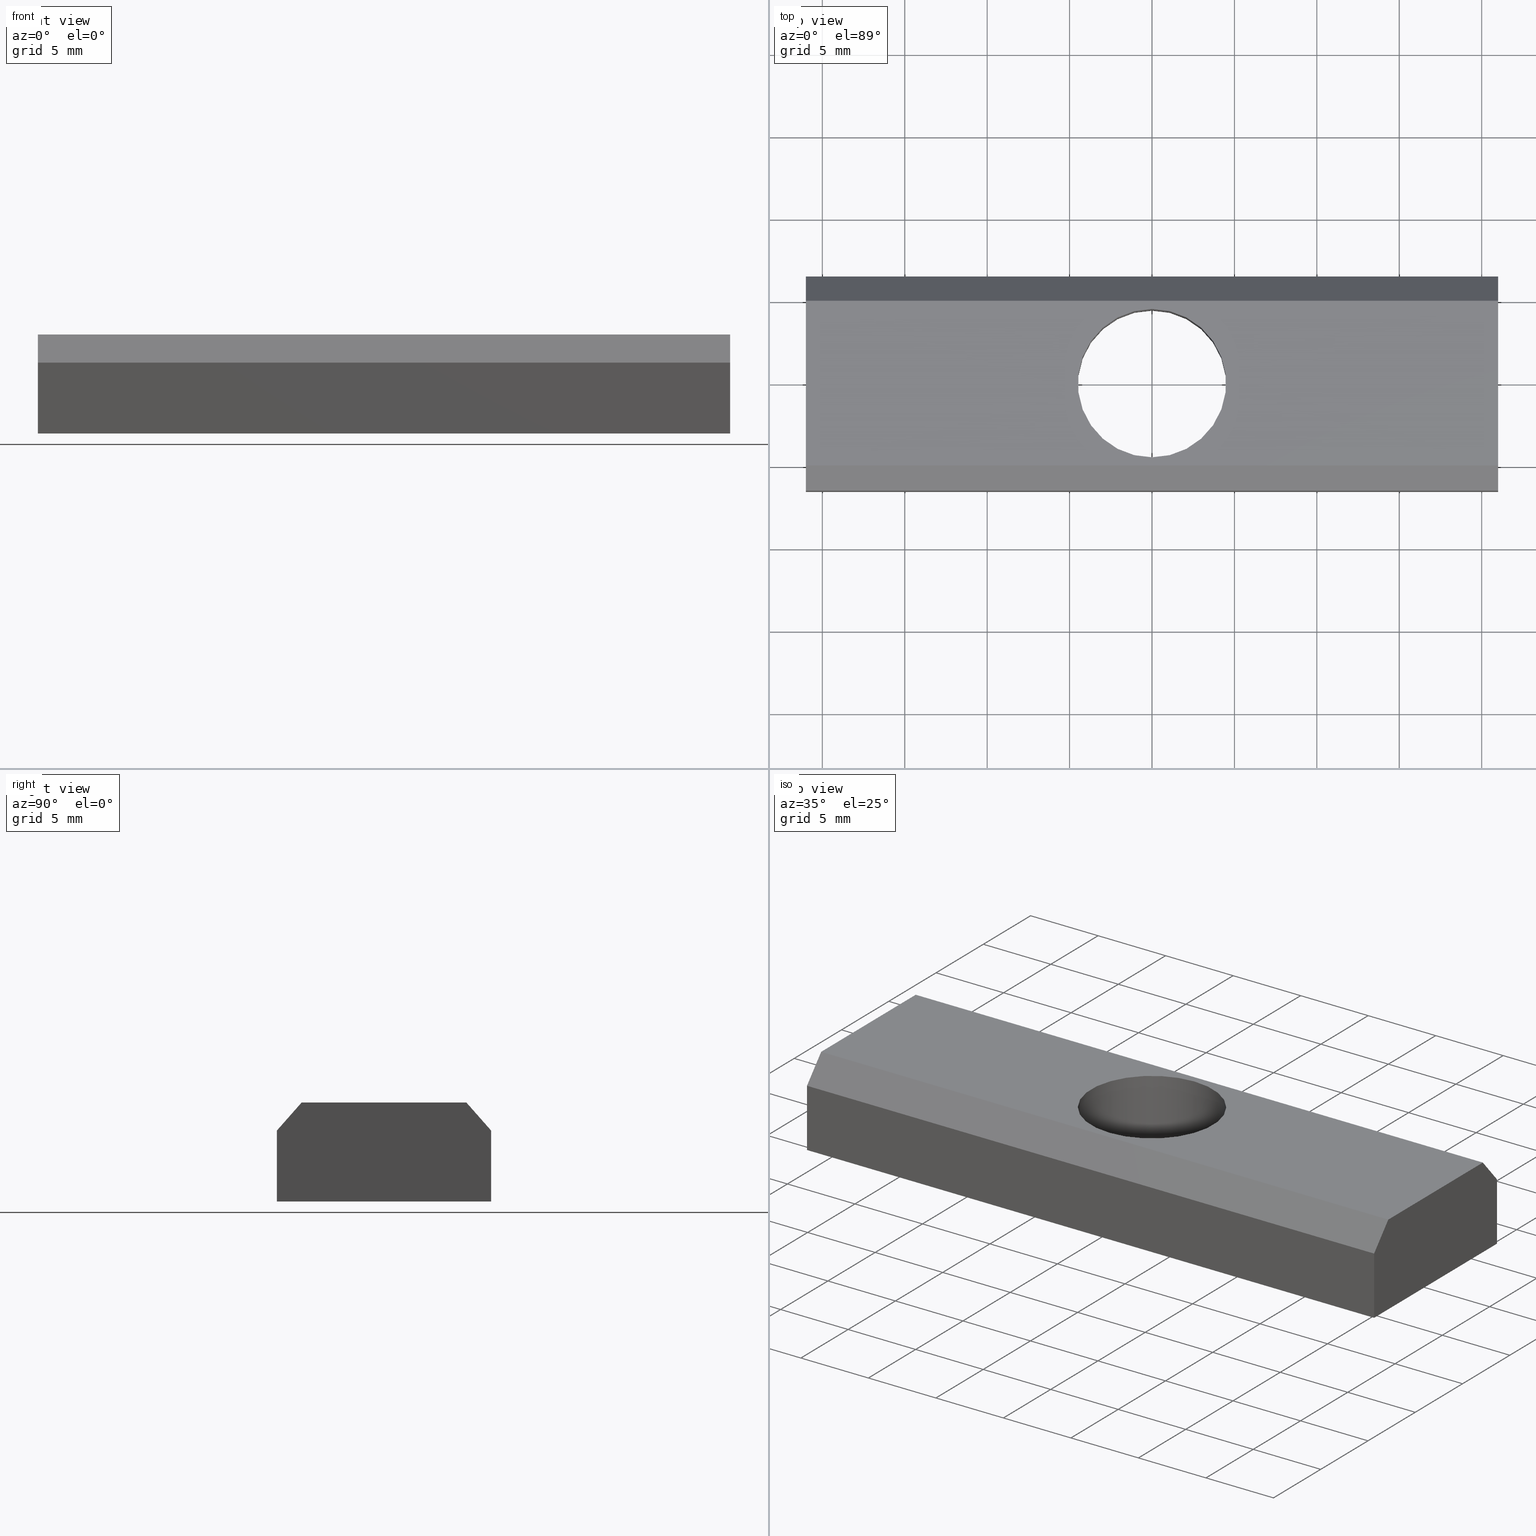
[diagram: canonical four-view strip — front | top / right | iso, engineering-drawing reading convention]
A machine part, canonical four-view strip (front | top / right | iso — engineering-drawing reading convention). The complete STEP part file that produces these views, byte-faithful:
ISO-10303-21;
HEADER;
/****************************************************************
 * Generated by software with PDE/Lib inside                    *
 * PDElib Version v4.4, created Mon 02/23/2004                  *
 * International Technegroup Inc. (www.iti-oh.com)              *
 ****************************************************************/
FILE_DESCRIPTION(('STEP AP203'),'2;1');
FILE_NAME('26.061.00.stp','2011-03-21T16:15:34',(''),(''),'2009.3.110','THINKDESIGN','');
FILE_SCHEMA(('CONFIG_CONTROL_DESIGN'));
ENDSEC;
DATA;
#2=CARTESIAN_POINT('',(-21.000000000084128,-6.499999999974079,4.299999999982900));
#3=DIRECTION('',(0.0,-1.0,0.0));
#4=DIRECTION('',(0.0,0.0,-1.0));
#5=AXIS2_PLACEMENT_3D('',#2,#3,#4);
#6=PLANE('',#5);
#7=CARTESIAN_POINT('',(-21.000000000084128,-6.499999999974079,4.299999999982900));
#8=VERTEX_POINT('',#7);
#9=CARTESIAN_POINT('',(-21.000000000084128,-6.499999999974079,-1.776357E-015));
#10=VERTEX_POINT('',#9);
#11=CARTESIAN_POINT('',(-21.000000000084128,-6.499999999974079,4.299999999982809));
#12=DIRECTION('',(0.0,0.0,-1.0));
#13=VECTOR('',#12,4.299999999982811);
#14=LINE('',#11,#13);
#15=EDGE_CURVE('',#8,#10,#14,.T.);
#16=ORIENTED_EDGE('',*,*,#15,.T.);
#17=CARTESIAN_POINT('',(20.999999999915872,-6.499999999974079,-1.776357E-015));
#18=VERTEX_POINT('',#17);
#19=CARTESIAN_POINT('',(-21.000000000084128,-6.499999999974079,-1.776357E-015));
#20=DIRECTION('',(1.0,0.0,0.0));
#21=VECTOR('',#20,42.0);
#22=LINE('',#19,#21);
#23=EDGE_CURVE('',#10,#18,#22,.T.);
#24=ORIENTED_EDGE('',*,*,#23,.T.);
#25=CARTESIAN_POINT('',(20.999999999915872,-6.499999999974079,4.299999999982900));
#26=VERTEX_POINT('',#25);
#27=CARTESIAN_POINT('',(20.999999999915872,-6.499999999974079,4.299999999982809));
#28=DIRECTION('',(0.0,0.0,-1.0));
#29=VECTOR('',#28,4.299999999982811);
#30=LINE('',#27,#29);
#31=EDGE_CURVE('',#26,#18,#30,.T.);
#32=ORIENTED_EDGE('',*,*,#31,.F.);
#33=CARTESIAN_POINT('',(-21.000000000084128,-6.499999999974079,4.299999999982900));
#34=DIRECTION('',(1.0,0.0,0.0));
#35=VECTOR('',#34,42.0);
#36=LINE('',#33,#35);
#37=EDGE_CURVE('',#8,#26,#36,.T.);
#38=ORIENTED_EDGE('',*,*,#37,.F.);
#39=EDGE_LOOP('',(#16,#24,#32,#38));
#40=FACE_OUTER_BOUND('',#39,.T.);
#41=ADVANCED_FACE('',(#40),#6,.T.);
#42=CARTESIAN_POINT('',(-21.000000000084128,-6.499999999974079,-1.776357E-015));
#43=DIRECTION('',(0.0,0.0,-1.0));
#44=DIRECTION('',(0.0,1.0,0.0));
#45=AXIS2_PLACEMENT_3D('',#42,#43,#44);
#46=PLANE('',#45);
#47=CARTESIAN_POINT('',(-21.000000000084128,6.499999999974079,-1.776357E-015));
#48=VERTEX_POINT('',#47);
#49=CARTESIAN_POINT('',(-21.000000000084128,-6.499999999974079,-1.776357E-015));
#50=DIRECTION('',(0.0,1.0,0.0));
#51=VECTOR('',#50,12.999999999948013);
#52=LINE('',#49,#51);
#53=EDGE_CURVE('',#10,#48,#52,.T.);
#54=ORIENTED_EDGE('',*,*,#53,.T.);
#55=CARTESIAN_POINT('',(20.999999999915872,6.499999999974079,-1.776357E-015));
#56=VERTEX_POINT('',#55);
#57=CARTESIAN_POINT('',(-21.000000000084128,6.499999999974079,-1.776357E-015));
#58=DIRECTION('',(1.0,0.0,0.0));
#59=VECTOR('',#58,42.0);
#60=LINE('',#57,#59);
#61=EDGE_CURVE('',#48,#56,#60,.T.);
#62=ORIENTED_EDGE('',*,*,#61,.T.);
#63=CARTESIAN_POINT('',(20.999999999915872,-6.499999999974079,-1.776357E-015));
#64=DIRECTION('',(0.0,1.0,0.0));
#65=VECTOR('',#64,12.999999999948013);
#66=LINE('',#63,#65);
#67=EDGE_CURVE('',#18,#56,#66,.T.);
#68=ORIENTED_EDGE('',*,*,#67,.F.);
#69=ORIENTED_EDGE('',*,*,#23,.F.);
#70=EDGE_LOOP('',(#54,#62,#68,#69));
#71=FACE_OUTER_BOUND('',#70,.T.);
#72=CARTESIAN_POINT('',(0.0,-4.500000000000000,-8.881784E-016));
#73=VERTEX_POINT('',#72);
#74=CARTESIAN_POINT('',(0.0,4.500000000000000,0.0));
#75=VERTEX_POINT('',#74);
#76=CARTESIAN_POINT('',(0.0,0.0,0.0));
#77=DIRECTION('',(-6.123234E-017,0.0,1.0));
#78=DIRECTION('',(0.0,-1.0,0.0));
#79=AXIS2_PLACEMENT_3D('',#76,#77,#78);
#80=CIRCLE('',#79,4.500000000000000);
#81=EDGE_CURVE('',#73,#75,#80,.T.);
#82=ORIENTED_EDGE('',*,*,#81,.T.);
#83=CARTESIAN_POINT('',(0.0,0.0,0.0));
#84=DIRECTION('',(-6.123234E-017,0.0,1.0));
#85=DIRECTION('',(0.0,-1.0,0.0));
#86=AXIS2_PLACEMENT_3D('',#83,#84,#85);
#87=CIRCLE('',#86,4.500000000000000);
#88=EDGE_CURVE('',#75,#73,#87,.T.);
#89=ORIENTED_EDGE('',*,*,#88,.T.);
#90=EDGE_LOOP('',(#82,#89));
#91=FACE_BOUND('',#90,.T.);
#92=ADVANCED_FACE('',(#71,#91),#46,.T.);
#93=CARTESIAN_POINT('',(-21.000000000084128,6.499999999974079,-1.776357E-015));
#94=DIRECTION('',(0.0,1.0,0.0));
#95=DIRECTION('',(0.0,0.0,1.0));
#96=AXIS2_PLACEMENT_3D('',#93,#94,#95);
#97=PLANE('',#96);
#98=CARTESIAN_POINT('',(-21.000000000084128,6.499999999974079,4.299999999982445));
#99=VERTEX_POINT('',#98);
#100=CARTESIAN_POINT('',(-21.000000000084128,6.499999999974079,-1.776357E-015));
#101=DIRECTION('',(0.0,0.0,1.0));
#102=VECTOR('',#101,4.299999999982811);
#103=LINE('',#100,#102);
#104=EDGE_CURVE('',#48,#99,#103,.T.);
#105=ORIENTED_EDGE('',*,*,#104,.T.);
#106=CARTESIAN_POINT('',(20.999999999915872,6.499999999974079,4.299999999982445));
#107=VERTEX_POINT('',#106);
#108=CARTESIAN_POINT('',(-21.000000000084128,6.499999999974079,4.299999999982445));
#109=DIRECTION('',(1.0,0.0,0.0));
#110=VECTOR('',#109,42.0);
#111=LINE('',#108,#110);
#112=EDGE_CURVE('',#99,#107,#111,.T.);
#113=ORIENTED_EDGE('',*,*,#112,.T.);
#114=CARTESIAN_POINT('',(20.999999999915872,6.499999999974079,-1.776357E-015));
#115=DIRECTION('',(0.0,0.0,1.0));
#116=VECTOR('',#115,4.299999999982811);
#117=LINE('',#114,#116);
#118=EDGE_CURVE('',#56,#107,#117,.T.);
#119=ORIENTED_EDGE('',*,*,#118,.F.);
#120=ORIENTED_EDGE('',*,*,#61,.F.);
#121=EDGE_LOOP('',(#105,#113,#119,#120));
#122=FACE_OUTER_BOUND('',#121,.T.);
#123=ADVANCED_FACE('',(#122),#97,.T.);
#124=CARTESIAN_POINT('',(-21.000000000084128,6.499999999974079,4.299999999982445));
#125=DIRECTION('',(-4.051264E-017,0.749837855365034,0.661621637086913));
#126=DIRECTION('',(-4.591433E-017,-0.661621637086913,0.749837855365034));
#127=AXIS2_PLACEMENT_3D('',#124,#125,#126);
#128=PLANE('',#127);
#129=CARTESIAN_POINT('',(-21.000000000084128,4.999999999979991,5.999999999975897));
#130=VERTEX_POINT('',#129);
#131=CARTESIAN_POINT('',(-21.000000000084128,6.499999999974079,4.299999999982445));
#132=DIRECTION('',(0.0,-0.661621637086846,0.749837855365093));
#133=VECTOR('',#132,2.267156809741826);
#134=LINE('',#131,#133);
#135=EDGE_CURVE('',#99,#130,#134,.T.);
#136=ORIENTED_EDGE('',*,*,#135,.T.);
#137=CARTESIAN_POINT('',(20.999999999915872,4.999999999979991,5.999999999975897));
#138=VERTEX_POINT('',#137);
#139=CARTESIAN_POINT('',(-21.000000000084128,4.999999999979991,5.999999999975897));
#140=DIRECTION('',(1.0,0.0,0.0));
#141=VECTOR('',#140,42.0);
#142=LINE('',#139,#141);
#143=EDGE_CURVE('',#130,#138,#142,.T.);
#144=ORIENTED_EDGE('',*,*,#143,.T.);
#145=CARTESIAN_POINT('',(20.999999999915872,6.499999999974079,4.299999999982445));
#146=DIRECTION('',(0.0,-0.661621637086846,0.749837855365093));
#147=VECTOR('',#146,2.267156809741826);
#148=LINE('',#145,#147);
#149=EDGE_CURVE('',#107,#138,#148,.T.);
#150=ORIENTED_EDGE('',*,*,#149,.F.);
#151=ORIENTED_EDGE('',*,*,#112,.F.);
#152=EDGE_LOOP('',(#136,#144,#150,#151));
#153=FACE_OUTER_BOUND('',#152,.T.);
#154=ADVANCED_FACE('',(#153),#128,.T.);
#155=CARTESIAN_POINT('',(-21.000000000084128,4.999999999979991,5.999999999975897));
#156=DIRECTION('',(0.0,0.0,1.0));
#157=DIRECTION('',(0.0,-1.0,0.0));
#158=AXIS2_PLACEMENT_3D('',#155,#156,#157);
#159=PLANE('',#158);
#160=CARTESIAN_POINT('',(-21.000000000084128,-4.999999999979991,5.999999999975442));
#161=VERTEX_POINT('',#160);
#162=CARTESIAN_POINT('',(-21.000000000084128,4.999999999980011,5.999999999975897));
#163=DIRECTION('',(0.0,-1.0,0.0));
#164=VECTOR('',#163,9.999999999960002);
#165=LINE('',#162,#164);
#166=EDGE_CURVE('',#130,#161,#165,.T.);
#167=ORIENTED_EDGE('',*,*,#166,.T.);
#168=CARTESIAN_POINT('',(20.999999999915872,-4.999999999979991,5.999999999975442));
#169=VERTEX_POINT('',#168);
#170=CARTESIAN_POINT('',(-21.000000000084128,-4.999999999979991,5.999999999975442));
#171=DIRECTION('',(1.0,0.0,0.0));
#172=VECTOR('',#171,42.0);
#173=LINE('',#170,#172);
#174=EDGE_CURVE('',#161,#169,#173,.T.);
#175=ORIENTED_EDGE('',*,*,#174,.T.);
#176=CARTESIAN_POINT('',(20.999999999915872,4.999999999980011,5.999999999975897));
#177=DIRECTION('',(0.0,-1.0,0.0));
#178=VECTOR('',#177,9.999999999960002);
#179=LINE('',#176,#178);
#180=EDGE_CURVE('',#138,#169,#179,.T.);
#181=ORIENTED_EDGE('',*,*,#180,.F.);
#182=ORIENTED_EDGE('',*,*,#143,.F.);
#183=EDGE_LOOP('',(#167,#175,#181,#182));
#184=FACE_OUTER_BOUND('',#183,.T.);
#185=CARTESIAN_POINT('',(0.0,4.500000000000000,5.999999999975898));
#186=VERTEX_POINT('',#185);
#187=CARTESIAN_POINT('',(0.0,-4.500000000000000,5.999999999975898));
#188=VERTEX_POINT('',#187);
#189=CARTESIAN_POINT('',(0.0,0.0,5.999999999975898));
#190=DIRECTION('',(-6.123234E-017,0.0,1.0));
#191=DIRECTION('',(0.0,-1.0,0.0));
#192=AXIS2_PLACEMENT_3D('',#189,#190,#191);
#193=CIRCLE('',#192,4.500000000000000);
#194=EDGE_CURVE('',#186,#188,#193,.T.);
#195=ORIENTED_EDGE('',*,*,#194,.F.);
#196=CARTESIAN_POINT('',(0.0,0.0,5.999999999975898));
#197=DIRECTION('',(-6.123234E-017,0.0,1.0));
#198=DIRECTION('',(0.0,-1.0,0.0));
#199=AXIS2_PLACEMENT_3D('',#196,#197,#198);
#200=CIRCLE('',#199,4.500000000000000);
#201=EDGE_CURVE('',#188,#186,#200,.T.);
#202=ORIENTED_EDGE('',*,*,#201,.F.);
#203=EDGE_LOOP('',(#195,#202));
#204=FACE_BOUND('',#203,.T.);
#205=ADVANCED_FACE('',(#184,#204),#159,.T.);
#206=CARTESIAN_POINT('',(-21.000000000084128,-4.999999999979991,5.999999999975442));
#207=DIRECTION('',(-4.051264E-017,-0.749837855365034,0.661621637086913));
#208=DIRECTION('',(4.591433E-017,-0.661621637086913,-0.749837855365034));
#209=AXIS2_PLACEMENT_3D('',#206,#207,#208);
#210=PLANE('',#209);
#211=CARTESIAN_POINT('',(-21.000000000084128,-4.999999999980083,5.999999999975621));
#212=DIRECTION('',(0.0,-0.661621637086851,-0.749837855365089));
#213=VECTOR('',#212,2.267156809741838);
#214=LINE('',#211,#213);
#215=EDGE_CURVE('',#161,#8,#214,.T.);
#216=ORIENTED_EDGE('',*,*,#215,.T.);
#217=ORIENTED_EDGE('',*,*,#37,.T.);
#218=CARTESIAN_POINT('',(20.999999999915872,-4.999999999980083,5.999999999975621));
#219=DIRECTION('',(0.0,-0.661621637086851,-0.749837855365089));
#220=VECTOR('',#219,2.267156809741838);
#221=LINE('',#218,#220);
#222=EDGE_CURVE('',#169,#26,#221,.T.);
#223=ORIENTED_EDGE('',*,*,#222,.F.);
#224=ORIENTED_EDGE('',*,*,#174,.F.);
#225=EDGE_LOOP('',(#216,#217,#223,#224));
#226=FACE_OUTER_BOUND('',#225,.T.);
#227=ADVANCED_FACE('',(#226),#210,.T.);
#228=CARTESIAN_POINT('',(-21.000000000084128,-7.800004735117909,6.600004735154014));
#229=DIRECTION('',(1.0,0.0,0.0));
#230=DIRECTION('',(0.0,0.0,-1.0));
#231=AXIS2_PLACEMENT_3D('',#228,#229,#230);
#232=PLANE('',#231);
#233=ORIENTED_EDGE('',*,*,#215,.F.);
#234=ORIENTED_EDGE('',*,*,#166,.F.);
#235=ORIENTED_EDGE('',*,*,#135,.F.);
#236=ORIENTED_EDGE('',*,*,#104,.F.);
#237=ORIENTED_EDGE('',*,*,#53,.F.);
#238=ORIENTED_EDGE('',*,*,#15,.F.);
#239=EDGE_LOOP('',(#233,#234,#235,#236,#237,#238));
#240=FACE_OUTER_BOUND('',#239,.T.);
#241=ADVANCED_FACE('',(#240),#232,.F.);
#242=CARTESIAN_POINT('',(20.999999999915872,-7.800004735117909,6.600004735154014));
#243=DIRECTION('',(1.0,0.0,0.0));
#244=DIRECTION('',(0.0,0.0,-1.0));
#245=AXIS2_PLACEMENT_3D('',#242,#243,#244);
#246=PLANE('',#245);
#247=ORIENTED_EDGE('',*,*,#31,.T.);
#248=ORIENTED_EDGE('',*,*,#67,.T.);
#249=ORIENTED_EDGE('',*,*,#118,.T.);
#250=ORIENTED_EDGE('',*,*,#149,.T.);
#251=ORIENTED_EDGE('',*,*,#180,.T.);
#252=ORIENTED_EDGE('',*,*,#222,.T.);
#253=EDGE_LOOP('',(#247,#248,#249,#250,#251,#252));
#254=FACE_OUTER_BOUND('',#253,.T.);
#255=ADVANCED_FACE('',(#254),#246,.T.);
#256=CARTESIAN_POINT('',(0.0,0.0,5.999999999975898));
#257=DIRECTION('',(-6.123234E-017,0.0,1.0));
#258=DIRECTION('',(0.0,-1.0,0.0));
#259=AXIS2_PLACEMENT_3D('',#256,#257,#258);
#260=CYLINDRICAL_SURFACE('',#259,4.500000000000000);
#261=CARTESIAN_POINT('',(0.0,-4.500000000000000,5.999999999975898));
#262=DIRECTION('',(0.0,0.0,-1.0));
#263=VECTOR('',#262,5.999999999975898);
#264=LINE('',#261,#263);
#265=EDGE_CURVE('',#188,#73,#264,.T.);
#266=ORIENTED_EDGE('',*,*,#265,.T.);
#267=ORIENTED_EDGE('',*,*,#88,.F.);
#268=ORIENTED_EDGE('',*,*,#81,.F.);
#269=ORIENTED_EDGE('',*,*,#265,.F.);
#270=ORIENTED_EDGE('',*,*,#201,.T.);
#271=ORIENTED_EDGE('',*,*,#194,.T.);
#272=EDGE_LOOP('',(#266,#267,#268,#269,#270,#271));
#273=FACE_OUTER_BOUND('',#272,.T.);
#274=ADVANCED_FACE('',(#273),#260,.F.);
#275=CLOSED_SHELL('',(#41,#92,#123,#154,#205,#227,#241,#255,#274));
#276=MANIFOLD_SOLID_BREP('',#275);
#277=CARTESIAN_POINT('',(0.0,0.0,5.999999999975898));
#283=(NAMED_UNIT(*)PLANE_ANGLE_UNIT()SI_UNIT($,.RADIAN.));
#284=DIMENSIONAL_EXPONENTS(0.0,0.0,0.0,0.0,0.0,0.0,0.0);
#285=PLANE_ANGLE_MEASURE_WITH_UNIT(PLANE_ANGLE_MEASURE(0.017453292500000),#283);
#289=(CONVERSION_BASED_UNIT('DEGREE',#285)NAMED_UNIT(#284)PLANE_ANGLE_UNIT());
#293=(NAMED_UNIT(*)SI_UNIT($,.STERADIAN.)SOLID_ANGLE_UNIT());
#297=(LENGTH_UNIT()NAMED_UNIT(*)SI_UNIT(.MILLI.,.METRE.));
#299=UNCERTAINTY_MEASURE_WITH_UNIT(LENGTH_MEASURE(0.001000000000000),#297,'DISTANCE_ACCURACY_VALUE','');
#301=(GEOMETRIC_REPRESENTATION_CONTEXT(3)GLOBAL_UNCERTAINTY_ASSIGNED_CONTEXT((#299))GLOBAL_UNIT_ASSIGNED_CONTEXT((#289,#293,#297))REPRESENTATION_CONTEXT('thinkdesign','2009.3.110'));
#302=ADVANCED_BREP_SHAPE_REPRESENTATION('',(#276),#301);
#303=APPLICATION_CONTEXT('configuration controlled 3D designs of mechanical parts and assemblies');
#304=APPLICATION_PROTOCOL_DEFINITION('International Standard','config_control_design',1995,#303);
#305=MECHANICAL_CONTEXT('None',#303,'mechanical');
#306=PRODUCT('None','None','None',(#305));
#307=PRODUCT_RELATED_PRODUCT_CATEGORY('detail',$,(#306));
#308=PRODUCT_CATEGORY('part',$);
#309=PRODUCT_CATEGORY_RELATIONSHIP('None','None',#308,#307);
#310=PERSON('PERSON1','None','None',$,$,$);
#311=ORGANIZATION('','None','None');
#312=PERSON_AND_ORGANIZATION(#310,#311);
#313=PERSON_AND_ORGANIZATION_ROLE('design_owner');
#314=CC_DESIGN_PERSON_AND_ORGANIZATION_ASSIGNMENT(#312,#313,(#306));
#315=PRODUCT_DEFINITION_FORMATION_WITH_SPECIFIED_SOURCE('None','None',#306,.NOT_KNOWN.);
#316=PERSON('PERSON2','None','None',$,$,$);
#317=ORGANIZATION('','None','None');
#318=PERSON_AND_ORGANIZATION(#316,#317);
#319=PERSON_AND_ORGANIZATION_ROLE('creator');
#320=CC_DESIGN_PERSON_AND_ORGANIZATION_ASSIGNMENT(#318,#319,(#315));
#321=PERSON('PERSON3','None','None',$,$,$);
#322=ORGANIZATION('','None','None');
#323=PERSON_AND_ORGANIZATION(#321,#322);
#324=PERSON_AND_ORGANIZATION_ROLE('part_supplier');
#325=CC_DESIGN_PERSON_AND_ORGANIZATION_ASSIGNMENT(#323,#324,(#315));
#326=APPROVAL_STATUS('approved');
#327=APPROVAL(#326,'None');
#328=PERSON('PERSON4','None','None',$,$,$);
#329=ORGANIZATION('','None','None');
#330=PERSON_AND_ORGANIZATION(#328,#329);
#331=APPROVAL_ROLE('None');
#332=APPROVAL_PERSON_ORGANIZATION(#330,#327,#331);
#333=CALENDAR_DATE(2011,21,3);
#334=COORDINATED_UNIVERSAL_TIME_OFFSET(0,0,.AHEAD.);
#335=LOCAL_TIME(16,15,34.0,#334);
#336=DATE_AND_TIME(#333,#335);
#337=APPROVAL_DATE_TIME(#336,#327);
#338=CC_DESIGN_APPROVAL(#327,(#315));
#339=SECURITY_CLASSIFICATION_LEVEL('unclassified');
#340=SECURITY_CLASSIFICATION('None','None',#339);
#341=CC_DESIGN_SECURITY_CLASSIFICATION(#340,(#315));
#342=APPROVAL_STATUS('approved');
#343=APPROVAL(#342,'None');
#344=PERSON('PERSON5','None','None',$,$,$);
#345=ORGANIZATION('','None','None');
#346=PERSON_AND_ORGANIZATION(#344,#345);
#347=APPROVAL_ROLE('None');
#348=APPROVAL_PERSON_ORGANIZATION(#346,#343,#347);
#349=CALENDAR_DATE(2011,21,3);
#350=COORDINATED_UNIVERSAL_TIME_OFFSET(0,0,.AHEAD.);
#351=LOCAL_TIME(16,15,34.0,#350);
#352=DATE_AND_TIME(#349,#351);
#353=APPROVAL_DATE_TIME(#352,#343);
#354=CC_DESIGN_APPROVAL(#343,(#340));
#355=PERSON('PERSON6','None','None',$,$,$);
#356=ORGANIZATION('','None','None');
#357=PERSON_AND_ORGANIZATION(#355,#356);
#358=PERSON_AND_ORGANIZATION_ROLE('classification_officer');
#359=CC_DESIGN_PERSON_AND_ORGANIZATION_ASSIGNMENT(#357,#358,(#340));
#360=DATE_TIME_ROLE('classification_date');
#361=CALENDAR_DATE(2011,21,3);
#362=COORDINATED_UNIVERSAL_TIME_OFFSET(0,0,.AHEAD.);
#363=LOCAL_TIME(16,15,34.0,#362);
#364=DATE_AND_TIME(#361,#363);
#365=CC_DESIGN_DATE_AND_TIME_ASSIGNMENT(#364,#360,(#340));
#366=DESIGN_CONTEXT('part definition',#303,'design');
#367=DOCUMENT_TYPE('cad_filename');
#368=DOCUMENT('None','None','None',#367);
#369=PRODUCT_DEFINITION_WITH_ASSOCIATED_DOCUMENTS('None','None',#315,#366,(#368));
#370=PERSON('PERSON7','None','None',$,$,$);
#371=ORGANIZATION('','None','None');
#372=PERSON_AND_ORGANIZATION(#370,#371);
#373=PERSON_AND_ORGANIZATION_ROLE('creator');
#374=CC_DESIGN_PERSON_AND_ORGANIZATION_ASSIGNMENT(#372,#373,(#369));
#375=DATE_TIME_ROLE('creation_date');
#376=CALENDAR_DATE(2011,21,3);
#377=COORDINATED_UNIVERSAL_TIME_OFFSET(0,0,.AHEAD.);
#378=LOCAL_TIME(16,15,34.0,#377);
#379=DATE_AND_TIME(#376,#378);
#380=CC_DESIGN_DATE_AND_TIME_ASSIGNMENT(#379,#375,(#369));
#381=APPROVAL_STATUS('approved');
#382=APPROVAL(#381,'None');
#383=PERSON('PERSON8','None','None',$,$,$);
#384=ORGANIZATION('','None','None');
#385=PERSON_AND_ORGANIZATION(#383,#384);
#386=APPROVAL_ROLE('None');
#387=APPROVAL_PERSON_ORGANIZATION(#385,#382,#386);
#388=CALENDAR_DATE(2011,21,3);
#389=COORDINATED_UNIVERSAL_TIME_OFFSET(0,0,.AHEAD.);
#390=LOCAL_TIME(16,15,34.0,#389);
#391=DATE_AND_TIME(#388,#390);
#392=APPROVAL_DATE_TIME(#391,#382);
#393=CC_DESIGN_APPROVAL(#382,(#369));
#394=PRODUCT_DEFINITION_SHAPE('None','None',#369);
#395=SHAPE_DEFINITION_REPRESENTATION(#394,#302);
#396=DIMENSIONAL_EXPONENTS(0.0,0.0,0.0,0.0,0.0,0.0,0.0);
#397=DIMENSIONAL_EXPONENTS(1.0,0.0,0.0,0.0,0.0,0.0,0.0);
ENDSEC;
END-ISO-10303-21;
